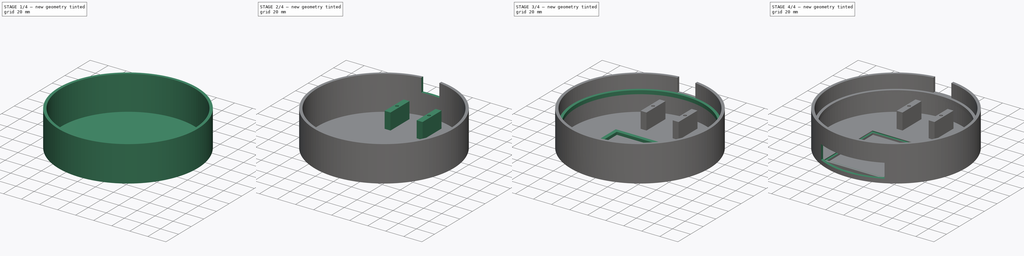
[diagram: build sequence overview — one tinted view per stage of 4, left to right]
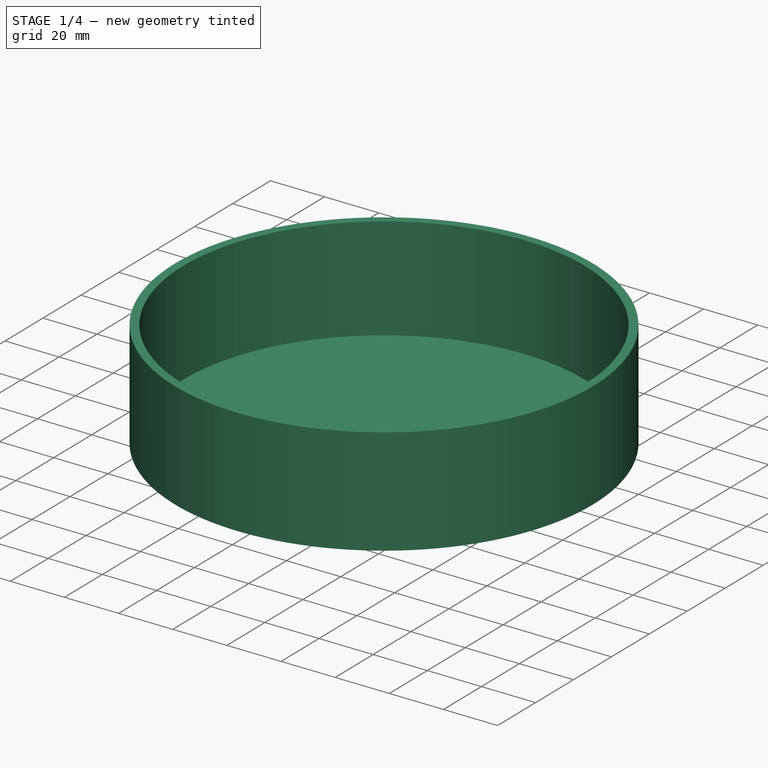
[diagram: stage 1 of 4 — iso view after this stage's code; geometry added in this stage tinted green]
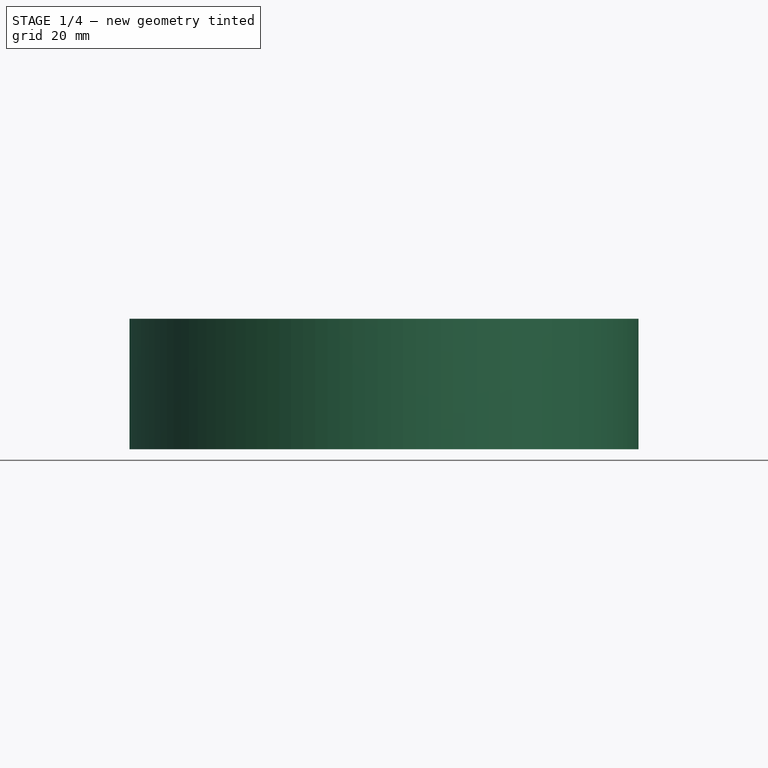
[diagram: stage 1 of 4 — front view after this stage's code; geometry added in this stage tinted green]
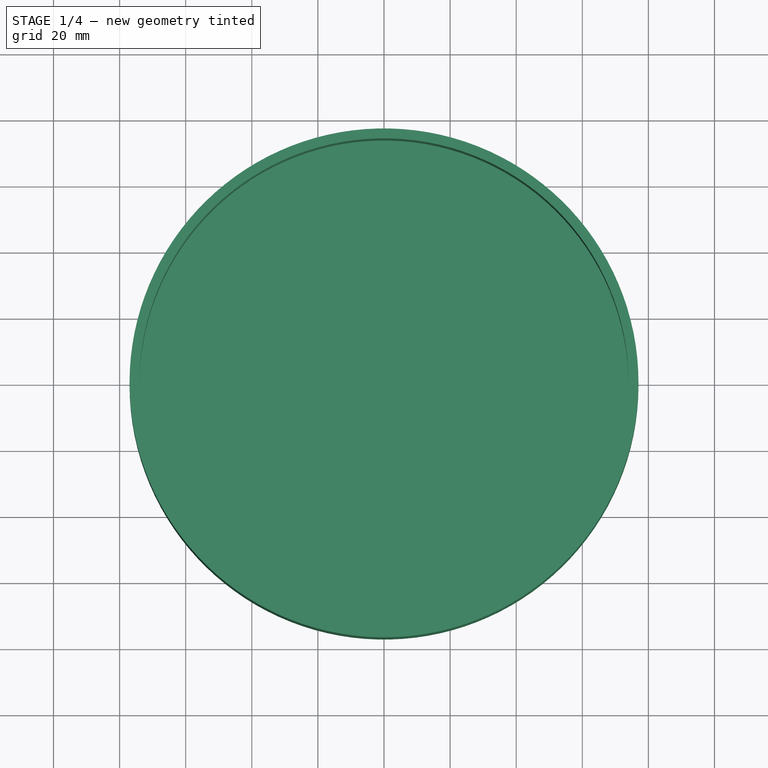
[diagram: stage 1 of 4 — top view after this stage's code; geometry added in this stage tinted green]
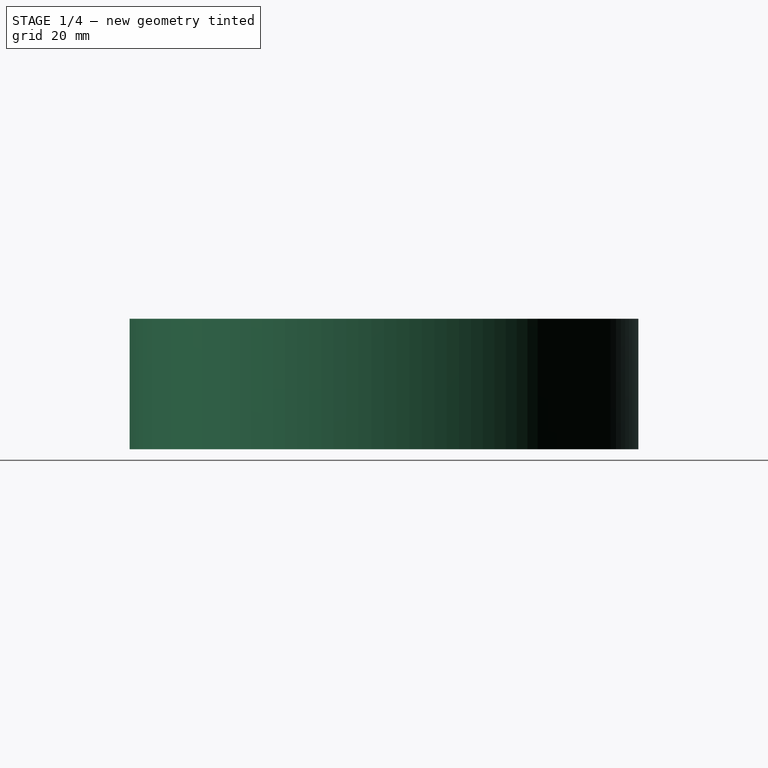
[diagram: stage 1 of 4 — right view after this stage's code; geometry added in this stage tinted green]
FCSTD DOCUMENT  (FreeCAD 0.20R)
Label: main_seb
License: All rights reserved
LicenseURL: http://en.wikipedia.org/wiki/All_rights_reserved
objects: Sketcher::SketchObject×10, PartDesign::Pad×5, PartDesign::Pocket×5, PartDesign::Body×1
note: 31 computed .brp shape members not serialized (recipe doc carries the construction recipe); baked Part::Feature solids carry a one-line shape summary decoded from their .brp

FEATURE [Sketcher::SketchObject] Sketch
  FullyConstrained = true
  sketch-geometry (2):
    g0: Circle CenterX=0 CenterY=0 CenterZ=0 NormalX=0 NormalY=0 NormalZ=1 AngleXU=0 Radius=77
    g1: Circle CenterX=0 CenterY=0 CenterZ=0 NormalX=0 NormalY=0 NormalZ=1 AngleXU=0 Radius=74
  constraints (4):
    c: Coincident(g0,g-1)
    c: Diameter(g0) = 154  'ext'
    c: Coincident(g1,g0)
    c: Diameter(g1) = 148
FEATURE [PartDesign::Pad] Pad  label="bord"
  Direction = (0,0,1)
  Length = 39.5
  Length2 = 10
  Profile = -> Sketch
  ReferenceAxis = -> Sketch [N_Axis]
  Type = 0
FEATURE [Sketcher::SketchObject] Sketch001
  FullyConstrained = true
  sketch-geometry (1):
    g0: Circle CenterX=0 CenterY=0 CenterZ=0 NormalX=0 NormalY=0 NormalZ=1 AngleXU=0 Radius=77
  constraints (2):
    c: Coincident(g0,g-1)
    c: Diameter(g0) = 154  'ext'
FEATURE [PartDesign::Pad] Pad001  label="fond"
  BaseFeature = -> Pad
  Direction = (0,0,1)
  Length = 1.5
  Length2 = 10
  Profile = -> Sketch001
  ReferenceAxis = -> Sketch001 [N_Axis]
  Type = 0
  UseCustomVector = true
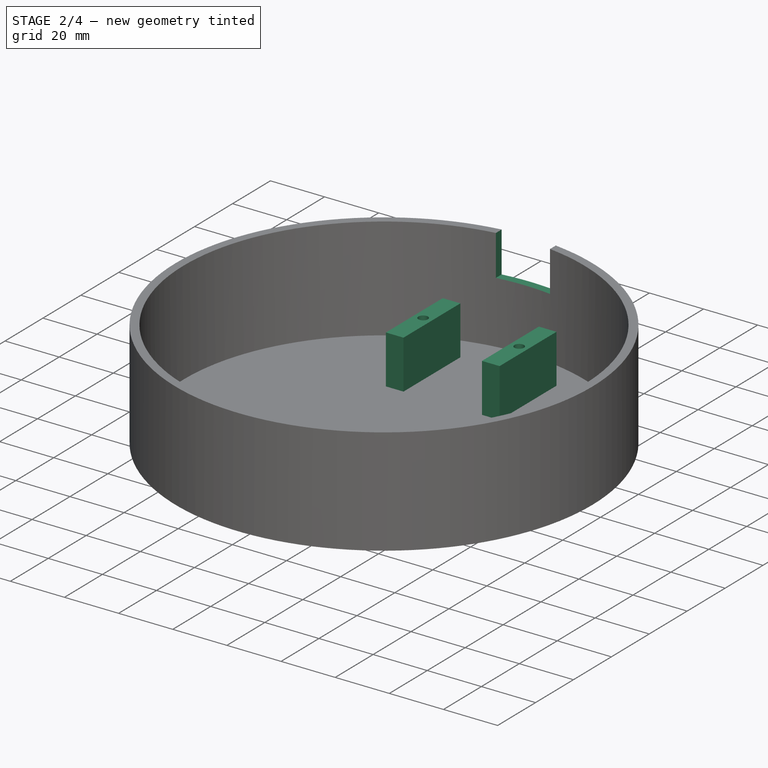
[diagram: stage 2 of 4 — iso view after this stage's code; geometry added in this stage tinted green]
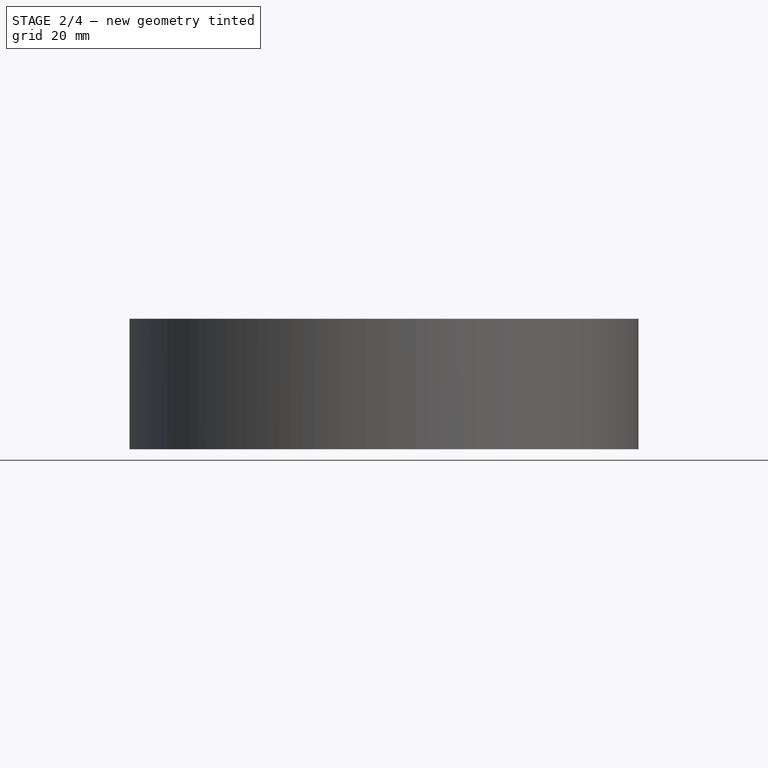
[diagram: stage 2 of 4 — front view after this stage's code; geometry added in this stage tinted green]
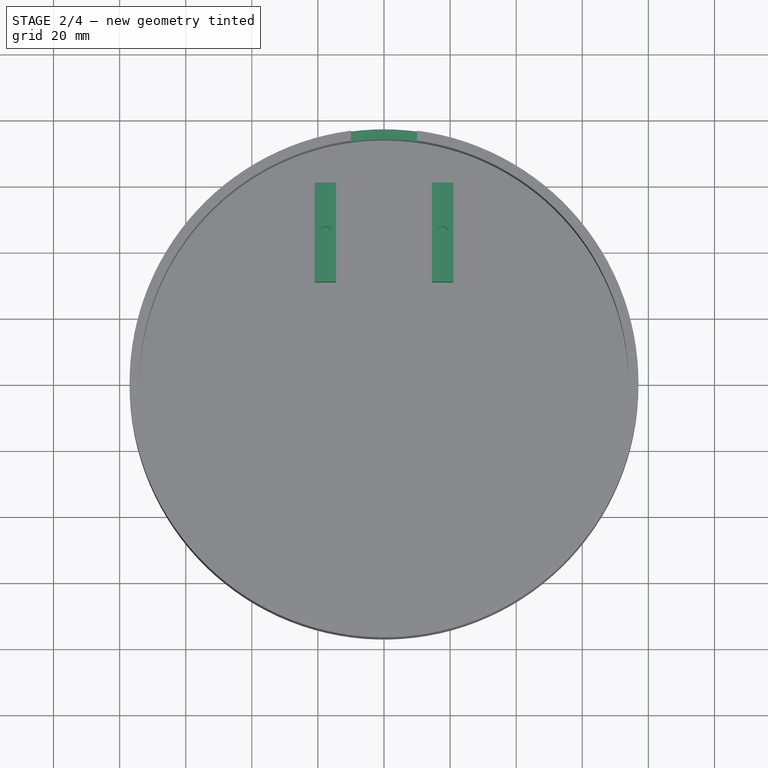
[diagram: stage 2 of 4 — top view after this stage's code; geometry added in this stage tinted green]
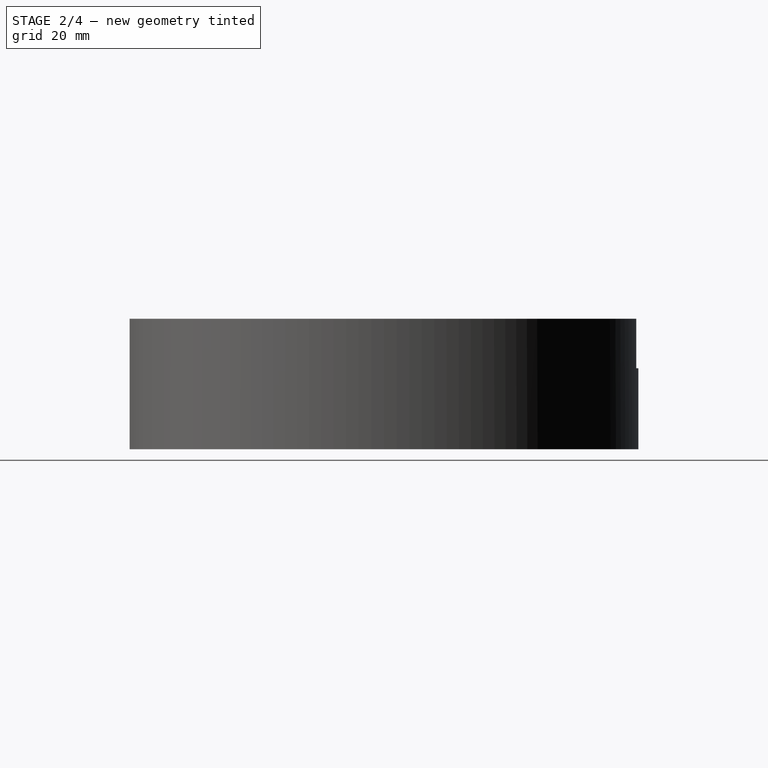
[diagram: stage 2 of 4 — right view after this stage's code; geometry added in this stage tinted green]
FEATURE [Sketcher::SketchObject] Sketch002
  FullyConstrained = true
  sketch-geometry (18):
    g0: Circle CenterX=0 CenterY=0 CenterZ=0 NormalX=0 NormalY=0 NormalZ=1 AngleXU=0 Radius=77
    g1: LineSegment StartX=-14.5 StartY=77 StartZ=0 EndX=0 EndY=77 EndZ=0
    g2: LineSegment StartX=0 StartY=77 StartZ=0 EndX=0 EndY=61 EndZ=0
    g3: LineSegment StartX=0 StartY=61 StartZ=0 EndX=-14.5 EndY=61 EndZ=0
    g4: LineSegment StartX=-14.5 StartY=61 StartZ=0 EndX=-14.5 EndY=77 EndZ=0
    g5: GeomPoint X=0 Y=77 Z=0
    g6: LineSegment StartX=-14.5 StartY=61 StartZ=0 EndX=-21 EndY=61 EndZ=0
    g7: LineSegment StartX=-21 StartY=61 StartZ=0 EndX=-21 EndY=31 EndZ=0
    g8: LineSegment StartX=-21 StartY=31 StartZ=0 EndX=-14.5 EndY=31 EndZ=0
    g9: LineSegment StartX=-14.5 StartY=31 StartZ=0 EndX=-14.5 EndY=61 EndZ=0
    g10: LineSegment StartX=0 StartY=77 StartZ=0 EndX=14.5 EndY=77 EndZ=0
    g11: LineSegment StartX=14.5 StartY=77 StartZ=0 EndX=14.5 EndY=61 EndZ=0
    g12: LineSegment StartX=14.5 StartY=61 StartZ=0 EndX=0 EndY=61 EndZ=0
    g13: LineSegment StartX=0 StartY=61 StartZ=0 EndX=0 EndY=77 EndZ=0
    g14: LineSegment StartX=14.5 StartY=61 StartZ=0 EndX=21 EndY=61 EndZ=0
    g15: LineSegment StartX=21 StartY=61 StartZ=0 EndX=21 EndY=31 EndZ=0
    g16: LineSegment StartX=21 StartY=31 StartZ=0 EndX=14.5 EndY=31 EndZ=0
    g17: LineSegment StartX=14.5 StartY=31 StartZ=0 EndX=14.5 EndY=61 EndZ=0
  constraints (48):
    c: Coincident(g0,g-1)
    c: Diameter(g0) = 154  'ext'
    c: Coincident(g1,g2)
    c: Coincident(g2,g3)
    c: Coincident(g3,g4)
    c: Coincident(g4,g1)
    c: Horizontal(g1)
    c: Horizontal(g3)
    c: Vertical(g2)
    c: Vertical(g4)
    c: PointOnObject(g5,g0)
    c: PointOnObject(g5,g-2)
    c: Coincident(g1,g5)
    c: DistanceY(g2,g2) = 16
    c: DistanceX(g3,g3) = 14.5
    c: Coincident(g6,g7)
    c: Coincident(g7,g8)
    c: Coincident(g8,g9)
    c: Coincident(g9,g6)
    c: Horizontal(g6)
    c: Horizontal(g8)
    c: Vertical(g7)
    c: Vertical(g9)
    c: Coincident(g6,g3)
    c: DistanceY(g7,g7) = 30
    c: DistanceX(g6,g6) = 6.5
    c: Coincident(g10,g11)
    c: Coincident(g11,g12)
    c: Coincident(g12,g13)
    c: Coincident(g13,g10)
    c: Horizontal(g10)
    c: Horizontal(g12)
    c: Vertical(g11)
    c: Vertical(g13)
    c: Coincident(g10,g1)
    c: DistanceX(g10,g10) = 14.5
    c: DistanceY(g11,g11) = 16
    c: Coincident(g14,g15)
    c: Coincident(g15,g16)
    c: Coincident(g16,g17)
    c: Coincident(g17,g14)
    c: Horizontal(g14)
    c: Horizontal(g16)
    c: Vertical(g15)
    c: Vertical(g17)
    c: Coincident(g11,g14)
    c: DistanceY(g15,g15) = 30
    c: DistanceX(g16,g16) = 6.5
FEATURE [PartDesign::Pad] Pad002
  BaseFeature = -> Pad001
  Direction = (0,0,1)
  Length = 19.5
  Length2 = 10
  Profile = -> Sketch002
  ReferenceAxis = -> Sketch002 [N_Axis]
  Type = 0
FEATURE [Sketcher::SketchObject] Sketch003
  FullyConstrained = true
  Placement = pos=(0,0,9.5) rot=(0,0,1;0rad)
  sketch-geometry (24):
    g0: Circle CenterX=0 CenterY=0 CenterZ=0 NormalX=0 NormalY=0 NormalZ=1 AngleXU=0 Radius=77
    g1: LineSegment StartX=-14.5 StartY=77 StartZ=0 EndX=0 EndY=77 EndZ=0
    g2: LineSegment StartX=0 StartY=77 StartZ=0 EndX=0 EndY=61 EndZ=0
    g3: LineSegment StartX=0 StartY=61 StartZ=0 EndX=-14.5 EndY=61 EndZ=0
    g4: LineSegment StartX=-14.5 StartY=61 StartZ=0 EndX=-14.5 EndY=77 EndZ=0
    g5: GeomPoint X=0 Y=77 Z=0
    g6: LineSegment StartX=-14.5 StartY=61 StartZ=0 EndX=-21 EndY=61 EndZ=0
    g7: LineSegment StartX=-21 StartY=61 StartZ=0 EndX=-21 EndY=31 EndZ=0
    g8: LineSegment StartX=-21 StartY=31 StartZ=0 EndX=-14.5 EndY=31 EndZ=0
    g9: LineSegment StartX=-14.5 StartY=31 StartZ=0 EndX=-14.5 EndY=61 EndZ=0
    g10: LineSegment StartX=0 StartY=77 StartZ=0 EndX=14.5 EndY=77 EndZ=0
    g11: LineSegment StartX=14.5 StartY=77 StartZ=0 EndX=14.5 EndY=61 EndZ=0
    g12: LineSegment StartX=14.5 StartY=61 StartZ=0 EndX=0 EndY=61 EndZ=0
    g13: LineSegment StartX=0 StartY=61 StartZ=0 EndX=0 EndY=77 EndZ=0
    g14: LineSegment StartX=14.5 StartY=61 StartZ=0 EndX=21 EndY=61 EndZ=0
    g15: LineSegment StartX=21 StartY=61 StartZ=0 EndX=21 EndY=31 EndZ=0
    g16: LineSegment StartX=21 StartY=31 StartZ=0 EndX=14.5 EndY=31 EndZ=0
    g17: LineSegment StartX=14.5 StartY=31 StartZ=0 EndX=14.5 EndY=61 EndZ=0
    g18: LineSegment StartX=-21 StartY=61 StartZ=0 EndX=-14.5 EndY=31 EndZ=0
    g19: LineSegment StartX=-14.5 StartY=61 StartZ=0 EndX=-21 EndY=31 EndZ=0
    g20: LineSegment StartX=14.5 StartY=61 StartZ=0 EndX=21 EndY=31 EndZ=0
    g21: LineSegment StartX=21 StartY=61 StartZ=0 EndX=14.5 EndY=31 EndZ=0
    g22: Circle CenterX=-17.75 CenterY=46 CenterZ=0 NormalX=0 NormalY=0 NormalZ=1 AngleXU=0 Radius=1.75
    g23: Circle CenterX=17.75 CenterY=46 CenterZ=0 NormalX=0 NormalY=0 NormalZ=1 AngleXU=0 Radius=1.75
  constraints (70):
    c: Coincident(g0,g-1)
    c: Diameter(g0) = 154  'ext'
    c: Coincident(g1,g2)
    c: Coincident(g2,g3)
    c: Coincident(g3,g4)
    c: Coincident(g4,g1)
    c: Horizontal(g1)
    c: Horizontal(g3)
    c: Vertical(g2)
    c: Vertical(g4)
    c: PointOnObject(g5,g0)
    c: PointOnObject(g5,g-2)
    c: Coincident(g1,g5)
    c: DistanceY(g2,g2) = 16
    c: DistanceX(g3,g3) = 14.5
    c: Coincident(g6,g7)
    c: Coincident(g7,g8)
    c: Coincident(g8,g9)
    c: Coincident(g9,g6)
    c: Horizontal(g6)
    c: Horizontal(g8)
    c: Vertical(g7)
    c: Vertical(g9)
    c: Coincident(g6,g3)
    c: DistanceY(g7,g7) = 30
    c: DistanceX(g6,g6) = 6.5
    c: Coincident(g10,g11)
    c: Coincident(g11,g12)
    c: Coincident(g12,g13)
    c: Coincident(g13,g10)
    c: Horizontal(g10)
    c: Horizontal(g12)
    c: Vertical(g11)
    c: Vertical(g13)
    c: Coincident(g10,g1)
    c: DistanceX(g10,g10) = 14.5
    c: DistanceY(g11,g11) = 16
    c: Coincident(g14,g15)
    c: Coincident(g15,g16)
    c: Coincident(g16,g17)
    c: Coincident(g17,g14)
    c: Horizontal(g14)
    c: Horizontal(g16)
    c: Vertical(g15)
    c: Vertical(g17)
    c: Coincident(g11,g14)
    c: DistanceY(g15,g15) = 30
    c: DistanceX(g16,g16) = 6.5
    c: PointOnObject(g18,g6)
    c: PointOnObject(g18,g7)
    c: PointOnObject(g19,g6)
    c: PointOnObject(g19,g9)
    c: PointOnObject(g20,g17)
    c: PointOnObject(g20,g14)
    c: PointOnObject(g21,g14)
    c: PointOnObject(g21,g15)
    c: PointOnObject(g21,g17)
    c: PointOnObject(g21,g16)
    c: PointOnObject(g20,g16)
    c: PointOnObject(g20,g15)
    c: PointOnObject(g19,g7)
    c: PointOnObject(g19,g8)
    c: PointOnObject(g18,g8)
    c: PointOnObject(g18,g9)
    c: PointOnObject(g22,g19)
    c: PointOnObject(g22,g18)
    c: Diameter(g22) = 3.5
    c: PointOnObject(g23,g21)
    c: PointOnObject(g23,g20)
    c: Diameter(g23) = 3.5
FEATURE [PartDesign::Pocket] Pocket
  BaseFeature = -> Pad002
  Direction = (0,0,-1)
  Length = 10
  Length2 = 5
  Profile = -> Sketch003
  ReferenceAxis = -> Sketch003 [N_Axis]
  Reversed = true
  Type = 0
FEATURE [Sketcher::SketchObject] Sketch004
  FullyConstrained = false
  Placement = pos=(0,0,24.5) rot=(0,0,1;0rad)
  sketch-geometry (8):
    g0: Circle CenterX=0 CenterY=0 CenterZ=0 NormalX=0 NormalY=0 NormalZ=1 AngleXU=0 Radius=77
    g1: GeomPoint X=0 Y=77 Z=0
    g2: LineSegment StartX=-10 StartY=85.8465 StartZ=0 EndX=10 EndY=85.8465 EndZ=0
    g3: LineSegment StartX=10 StartY=85.8465 StartZ=0 EndX=10 EndY=68.1535 EndZ=0
    g4: LineSegment StartX=10 StartY=68.1535 StartZ=0 EndX=-10 EndY=68.1535 EndZ=0
    g5: LineSegment StartX=-10 StartY=68.1535 StartZ=0 EndX=-10 EndY=85.8465 EndZ=0
    g6: LineSegment StartX=-10 StartY=85.8465 StartZ=0 EndX=10 EndY=68.1535 EndZ=0
    g7: LineSegment StartX=10 StartY=85.8465 StartZ=0 EndX=-10 EndY=68.1535 EndZ=0
  constraints (23):
    c: Coincident(g0,g-1)
    c: Diameter(g0) = 154  'ext'
    c: PointOnObject(g1,g0)
    c: PointOnObject(g1,g-2)
    c: Coincident(g2,g3)
    c: Coincident(g3,g4)
    c: Coincident(g4,g5)
    c: Coincident(g5,g2)
    c: Horizontal(g2)
    c: Horizontal(g4)
    c: Vertical(g3)
    c: Vertical(g5)
    c: DistanceX(g2,g2) = 20
    c: PointOnObject(g6,g2)
    c: PointOnObject(g6,g5)
    c: PointOnObject(g6,g4)
    c: PointOnObject(g6,g3)
    c: PointOnObject(g7,g4)
    c: PointOnObject(g7,g5)
    c: PointOnObject(g7,g2)
    c: PointOnObject(g7,g3)
    c: PointOnObject(g1,g6)
    c: PointOnObject(g1,g7)
FEATURE [PartDesign::Pocket] Pocket001
  BaseFeature = -> Pocket
  Direction = (0,0,-1)
  Length = 15
  Length2 = 5
  Profile = -> Sketch004
  ReferenceAxis = -> Sketch004 [N_Axis]
  Reversed = true
  Type = 0
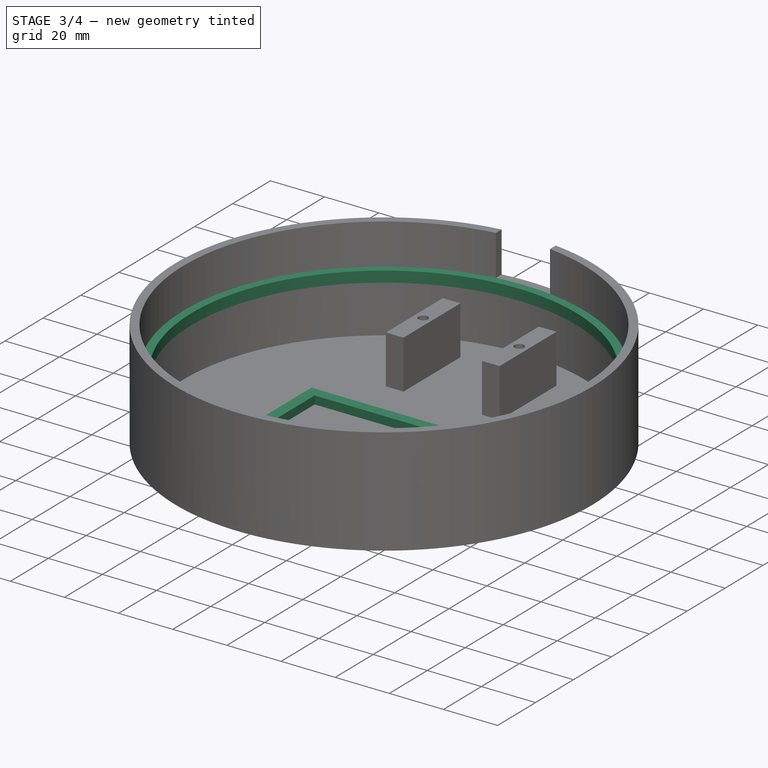
[diagram: stage 3 of 4 — iso view after this stage's code; geometry added in this stage tinted green]
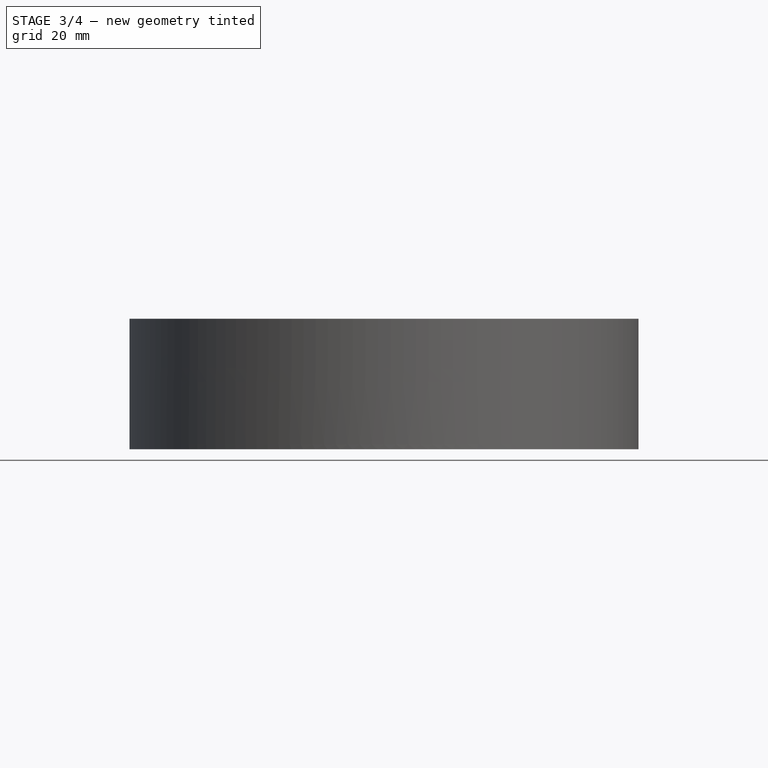
[diagram: stage 3 of 4 — front view after this stage's code; geometry added in this stage tinted green]
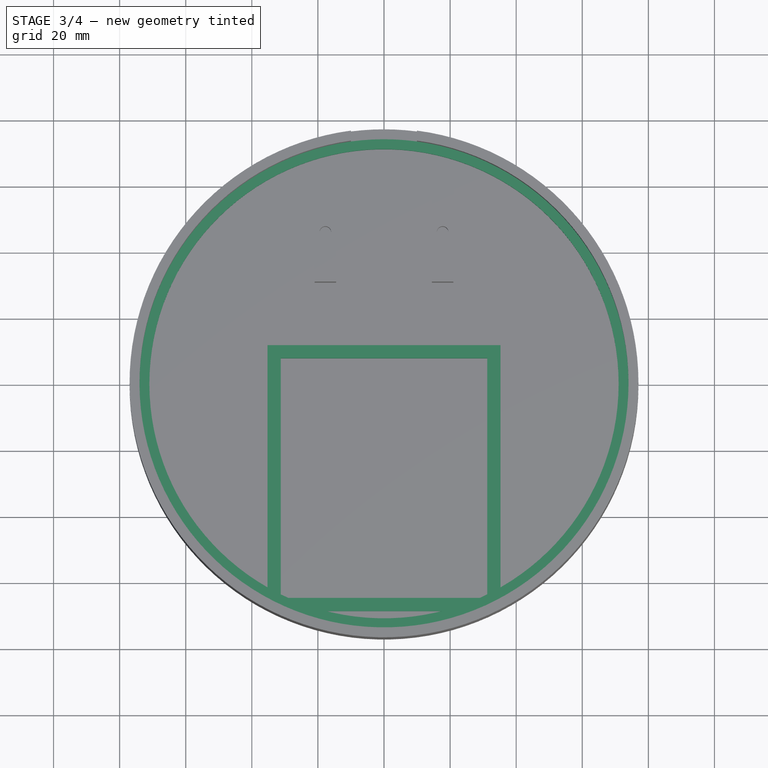
[diagram: stage 3 of 4 — top view after this stage's code; geometry added in this stage tinted green]
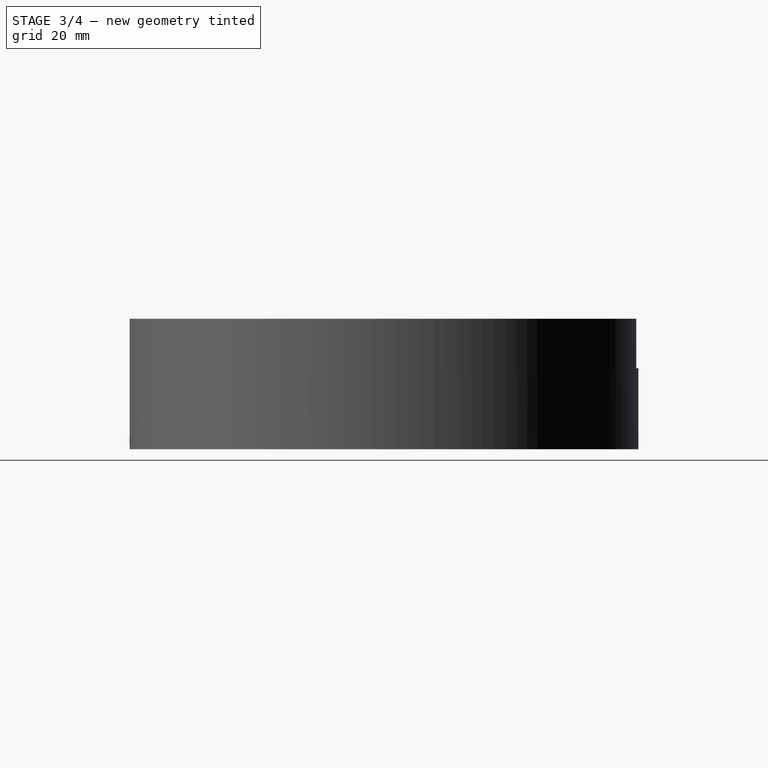
[diagram: stage 3 of 4 — right view after this stage's code; geometry added in this stage tinted green]
FEATURE [Sketcher::SketchObject] Sketch005
  FullyConstrained = true
  Placement = pos=(0,0,20.5) rot=(0,0,1;0rad)
  sketch-geometry (2):
    g0: Circle CenterX=0 CenterY=0 CenterZ=0 NormalX=0 NormalY=0 NormalZ=1 AngleXU=0 Radius=77
    g1: Circle CenterX=0 CenterY=0 CenterZ=0 NormalX=0 NormalY=0 NormalZ=1 AngleXU=0 Radius=71
  constraints (4):
    c: Coincident(g0,g-1)
    c: Diameter(g0) = 154  'ext'
    c: Coincident(g1,g0)
    c: Diameter(g1) = 142
FEATURE [PartDesign::Pad] Pad003
  BaseFeature = -> Pocket001
  Direction = (0,0,1)
  Length = 4
  Length2 = 10
  Profile = -> Sketch005
  ReferenceAxis = -> Sketch005 [N_Axis]
  Type = 0
FEATURE [Sketcher::SketchObject] Sketch007
  FullyConstrained = true
  Placement = pos=(0,0,1.5) rot=(0,0,1;0rad)
  sketch-geometry (10):
    g0: Circle CenterX=0 CenterY=0 CenterZ=0 NormalX=0 NormalY=0 NormalZ=1 AngleXU=0 Radius=77
    g1: Circle CenterX=0 CenterY=0 CenterZ=0 NormalX=0 NormalY=0 NormalZ=1 AngleXU=0 Radius=74
    g2: LineSegment StartX=-33.25 StartY=10.0424 StartZ=0 EndX=33.25 EndY=10.0424 EndZ=0
    g3: LineSegment StartX=33.25 StartY=10.0424 StartZ=0 EndX=33.25 EndY=-66.4576 EndZ=0
    g4: LineSegment StartX=33.25 StartY=-66.4576 StartZ=0 EndX=-33.25 EndY=-66.4576 EndZ=0
    g5: LineSegment StartX=-33.25 StartY=-66.4576 StartZ=0 EndX=-33.25 EndY=10.0424 EndZ=0
    g6: LineSegment StartX=-35.25 StartY=12.0424 StartZ=0 EndX=35.25 EndY=12.0424 EndZ=0
    g7: LineSegment StartX=35.25 StartY=12.0424 StartZ=0 EndX=35.25 EndY=-68.4576 EndZ=0
    g8: LineSegment StartX=35.25 StartY=-68.4576 StartZ=0 EndX=-35.25 EndY=-68.4576 EndZ=0
    g9: LineSegment StartX=-35.25 StartY=-68.4576 StartZ=0 EndX=-35.25 EndY=12.0424 EndZ=0
  constraints (28):
    c: Coincident(g0,g-1)
    c: Diameter(g0) = 154  'ext'
    c: Coincident(g1,g0)
    c: Diameter(g1) = 148
    c: Coincident(g2,g3)
    c: Coincident(g3,g4)
    c: Coincident(g4,g5)
    c: Coincident(g5,g2)
    c: Horizontal(g2)
    c: Horizontal(g4)
    c: Vertical(g3)
    c: Vertical(g5)
    c: DistanceX(g2,g2) = 66.5
    c: DistanceY(g3,g3) = 76.5
    c: Coincident(g6,g7)
    c: Coincident(g7,g8)
    c: Coincident(g8,g9)
    c: Coincident(g9,g6)
    c: Horizontal(g6)
    c: Horizontal(g8)
    c: Vertical(g7)
    c: Vertical(g9)
    c: Distance(g6,g2) = 2
    c: Distance(g6,g5) = 2
    c: Distance(g7,g4) = 2
    c: Distance(g3,g7) = 2
    c: PointOnObject(g8,g0)
    c: PointOnObject(g7,g0)
FEATURE [PartDesign::Pad] Pad004
  BaseFeature = -> Pad003
  Direction = (0,0,1)
  Length = 3
  Length2 = 10
  Profile = -> Sketch007
  ReferenceAxis = -> Sketch007 [N_Axis]
  Type = 0
FEATURE [Sketcher::SketchObject] Sketch008
  FullyConstrained = true
  Placement = pos=(0,0,1.5) rot=(0,0,1;0rad)
  sketch-geometry (14):
    g0: Circle CenterX=0 CenterY=0 CenterZ=0 NormalX=0 NormalY=0 NormalZ=1 AngleXU=0 Radius=77
    g1: Circle CenterX=0 CenterY=0 CenterZ=0 NormalX=0 NormalY=0 NormalZ=1 AngleXU=0 Radius=74
    g2: LineSegment StartX=-33.25 StartY=10.0424 StartZ=0 EndX=33.25 EndY=10.0424 EndZ=0
    g3: LineSegment StartX=33.25 StartY=10.0424 StartZ=0 EndX=33.25 EndY=-66.4576 EndZ=0
    g4: LineSegment StartX=33.25 StartY=-66.4576 StartZ=0 EndX=-33.25 EndY=-66.4576 EndZ=0
    g5: LineSegment StartX=-33.25 StartY=-66.4576 StartZ=0 EndX=-33.25 EndY=10.0424 EndZ=0
    g6: LineSegment StartX=-35.25 StartY=12.0424 StartZ=0 EndX=35.25 EndY=12.0424 EndZ=0
    g7: LineSegment StartX=35.25 StartY=12.0424 StartZ=0 EndX=35.25 EndY=-68.4576 EndZ=0
    g8: LineSegment StartX=35.25 StartY=-68.4576 StartZ=0 EndX=-35.25 EndY=-68.4576 EndZ=0
    g9: LineSegment StartX=-35.25 StartY=-68.4576 StartZ=0 EndX=-35.25 EndY=12.0424 EndZ=0
    g10: LineSegment StartX=-31.25 StartY=8.04244 StartZ=0 EndX=31.25 EndY=8.04244 EndZ=0
    g11: LineSegment StartX=31.25 StartY=8.04244 StartZ=0 EndX=31.25 EndY=-64.4576 EndZ=0
    g12: LineSegment StartX=31.25 StartY=-64.4576 StartZ=0 EndX=-31.25 EndY=-64.4576 EndZ=0
    g13: LineSegment StartX=-31.25 StartY=-64.4576 StartZ=0 EndX=-31.25 EndY=8.04244 EndZ=0
  constraints (40):
    c: Coincident(g0,g-1)
    c: Diameter(g0) = 154  'ext'
    c: Coincident(g1,g0)
    c: Diameter(g1) = 148
    c: Coincident(g2,g3)
    c: Coincident(g3,g4)
    c: Coincident(g4,g5)
    c: Coincident(g5,g2)
    c: Horizontal(g2)
    c: Horizontal(g4)
    c: Vertical(g3)
    c: Vertical(g5)
    c: DistanceX(g2,g2) = 66.5
    c: DistanceY(g3,g3) = 76.5
    c: Coincident(g6,g7)
    c: Coincident(g7,g8)
    c: Coincident(g8,g9)
    c: Coincident(g9,g6)
    c: Horizontal(g6)
    c: Horizontal(g8)
    c: Vertical(g7)
    c: Vertical(g9)
    c: Distance(g6,g2) = 2
    c: Distance(g6,g5) = 2
    c: Distance(g7,g4) = 2
    c: Distance(g3,g7) = 2
    c: Coincident(g10,g11)
    c: Coincident(g11,g12)
    c: Coincident(g12,g13)
    c: Coincident(g13,g10)
    c: Horizontal(g10)
    c: Horizontal(g12)
    c: Vertical(g11)
    c: Vertical(g13)
    c: Distance(g10,g5) = 2
    c: Distance(g10,g2) = 2
    c: Distance(g11,g3) = 2
    c: Distance(g12,g4) = 2
    c: PointOnObject(g8,g0)
    c: PointOnObject(g7,g0)
FEATURE [PartDesign::Pocket] Pocket002
  BaseFeature = -> Pad004
  Direction = (0,0,-1)
  Length = 4
  Length2 = 5
  Profile = -> Sketch008
  ReferenceAxis = -> Sketch008 [N_Axis]
  Reversed = true
  Type = 0
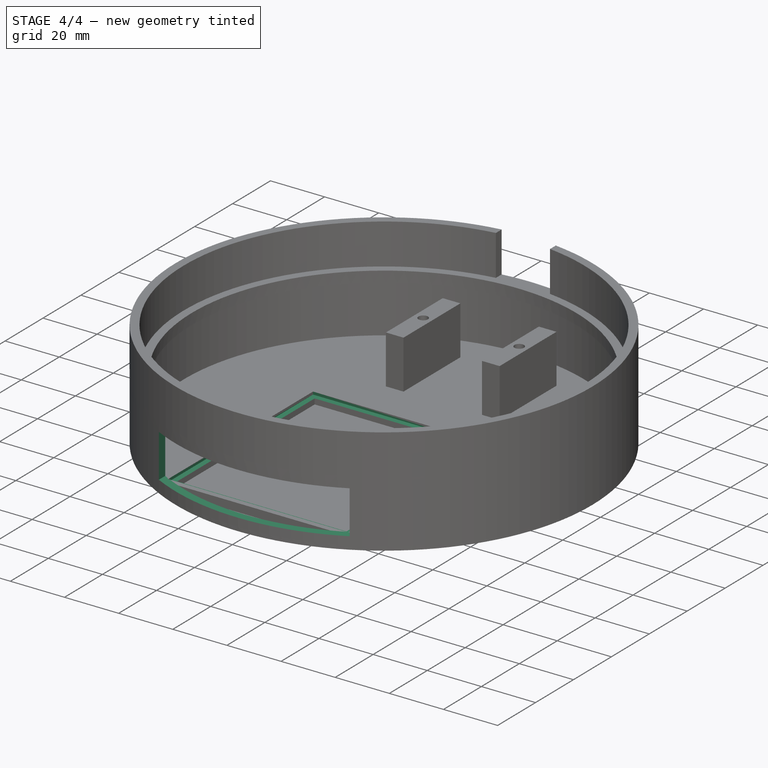
[diagram: stage 4 of 4 — iso view after this stage's code; geometry added in this stage tinted green]
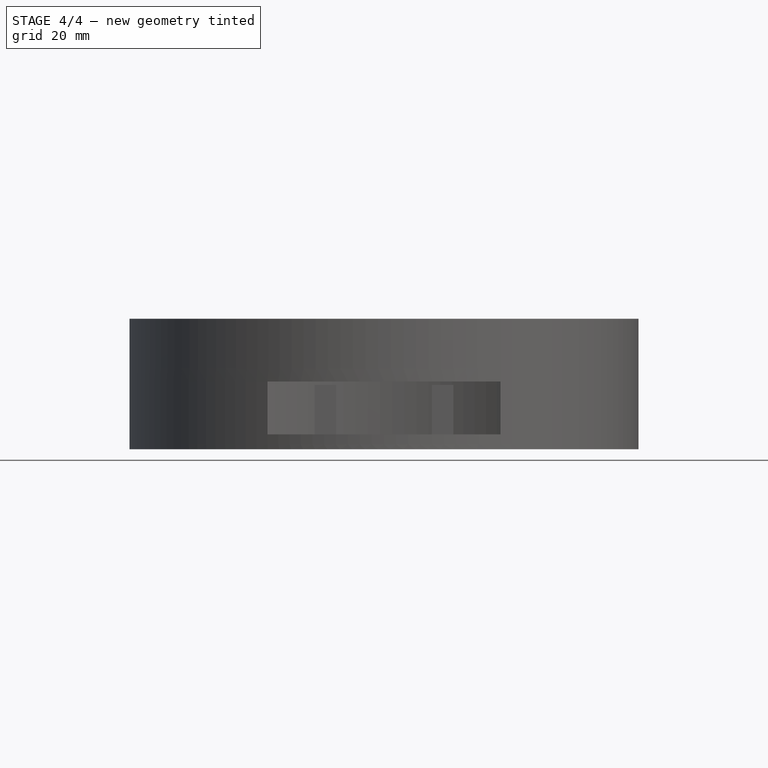
[diagram: stage 4 of 4 — front view after this stage's code; geometry added in this stage tinted green]
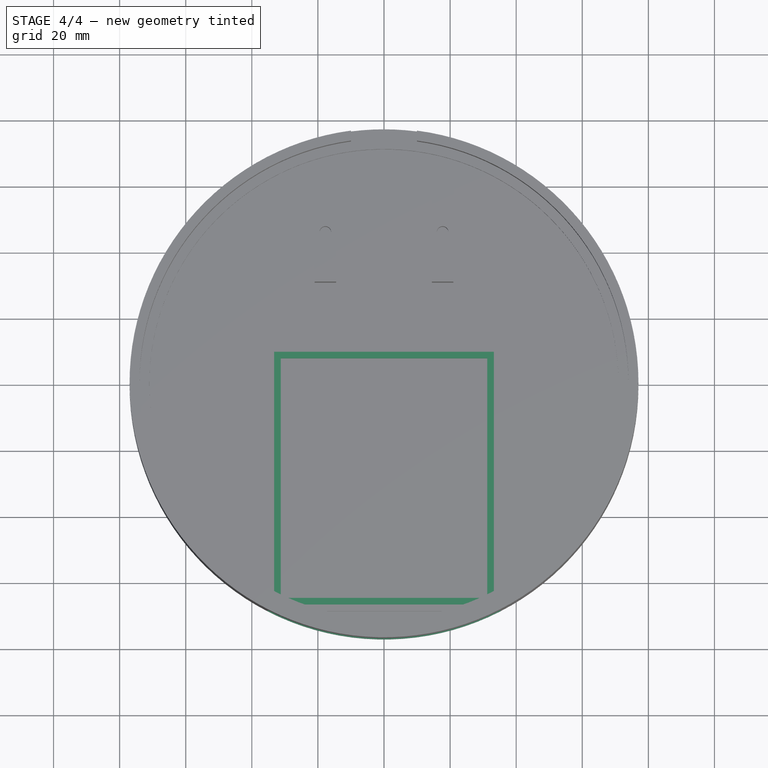
[diagram: stage 4 of 4 — top view after this stage's code; geometry added in this stage tinted green]
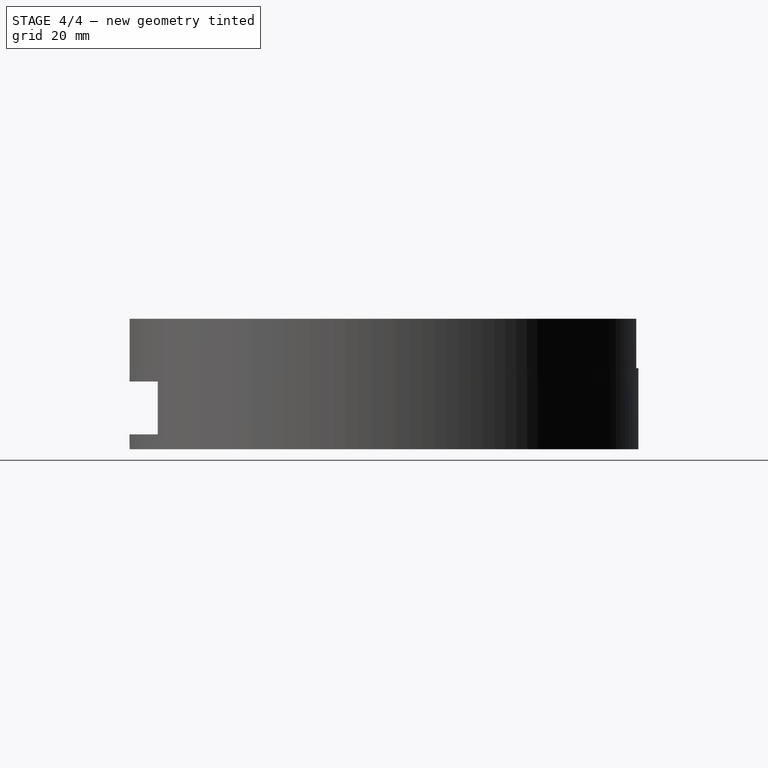
[diagram: stage 4 of 4 — right view after this stage's code; geometry added in this stage tinted green]
FEATURE [Sketcher::SketchObject] Sketch009
  FullyConstrained = true
  Placement = pos=(0,0,3.5) rot=(0,0,1;0rad)
  sketch-geometry (14):
    g0: Circle CenterX=0 CenterY=0 CenterZ=0 NormalX=0 NormalY=0 NormalZ=1 AngleXU=0 Radius=77
    g1: Circle CenterX=0 CenterY=0 CenterZ=0 NormalX=0 NormalY=0 NormalZ=1 AngleXU=0 Radius=74
    g2: LineSegment StartX=-33.25 StartY=10.0424 StartZ=0 EndX=33.25 EndY=10.0424 EndZ=0
    g3: LineSegment StartX=33.25 StartY=10.0424 StartZ=0 EndX=33.25 EndY=-66.4576 EndZ=0
    g4: LineSegment StartX=33.25 StartY=-66.4576 StartZ=0 EndX=-33.25 EndY=-66.4576 EndZ=0
    g5: LineSegment StartX=-33.25 StartY=-66.4576 StartZ=0 EndX=-33.25 EndY=10.0424 EndZ=0
    g6: LineSegment StartX=-35.25 StartY=12.0424 StartZ=0 EndX=35.25 EndY=12.0424 EndZ=0
    g7: LineSegment StartX=35.25 StartY=12.0424 StartZ=0 EndX=35.25 EndY=-68.4576 EndZ=0
    g8: LineSegment StartX=35.25 StartY=-68.4576 StartZ=0 EndX=-35.25 EndY=-68.4576 EndZ=0
    g9: LineSegment StartX=-35.25 StartY=-68.4576 StartZ=0 EndX=-35.25 EndY=12.0424 EndZ=0
    g10: LineSegment StartX=-31.25 StartY=8.04244 StartZ=0 EndX=31.25 EndY=8.04244 EndZ=0
    g11: LineSegment StartX=31.25 StartY=8.04244 StartZ=0 EndX=31.25 EndY=-64.4576 EndZ=0
    g12: LineSegment StartX=31.25 StartY=-64.4576 StartZ=0 EndX=-31.25 EndY=-64.4576 EndZ=0
    g13: LineSegment StartX=-31.25 StartY=-64.4576 StartZ=0 EndX=-31.25 EndY=8.04244 EndZ=0
  constraints (40):
    c: Coincident(g0,g-1)
    c: Diameter(g0) = 154  'ext'
    c: Coincident(g1,g0)
    c: Diameter(g1) = 148
    c: Coincident(g2,g3)
    c: Coincident(g3,g4)
    c: Coincident(g4,g5)
    c: Coincident(g5,g2)
    c: Horizontal(g2)
    c: Horizontal(g4)
    c: Vertical(g3)
    c: Vertical(g5)
    c: DistanceX(g2,g2) = 66.5
    c: DistanceY(g3,g3) = 76.5
    c: Coincident(g6,g7)
    c: Coincident(g7,g8)
    c: Coincident(g8,g9)
    c: Coincident(g9,g6)
    c: Horizontal(g6)
    c: Horizontal(g8)
    c: Vertical(g7)
    c: Vertical(g9)
    c: Distance(g6,g2) = 2
    c: Distance(g6,g5) = 2
    c: Distance(g7,g4) = 2
    c: Distance(g3,g7) = 2
    c: Coincident(g10,g11)
    c: Coincident(g11,g12)
    c: Coincident(g12,g13)
    c: Coincident(g13,g10)
    c: Horizontal(g10)
    c: Horizontal(g12)
    c: Vertical(g11)
    c: Vertical(g13)
    c: Distance(g10,g5) = 2
    c: Distance(g10,g2) = 2
    c: Distance(g11,g3) = 2
    c: Distance(g12,g4) = 2
    c: PointOnObject(g8,g0)
    c: PointOnObject(g7,g0)
FEATURE [PartDesign::Pocket] Pocket003
  BaseFeature = -> Pocket002
  Direction = (0,0,-1)
  Length = 2
  Length2 = 5
  Profile = -> Sketch009
  ReferenceAxis = -> Sketch009 [N_Axis]
  Reversed = true
  Type = 0
FEATURE [Sketcher::SketchObject] Sketch010
  FullyConstrained = false
  Placement = pos=(0,0,4.5) rot=(0,0,1;0rad)
  sketch-geometry (18):
    g0: Circle CenterX=0 CenterY=0 CenterZ=0 NormalX=0 NormalY=0 NormalZ=1 AngleXU=0 Radius=77
    g1: Circle CenterX=0 CenterY=0 CenterZ=0 NormalX=0 NormalY=0 NormalZ=1 AngleXU=0 Radius=74
    g2: LineSegment StartX=-33.25 StartY=13.4351 StartZ=0 EndX=33.25 EndY=13.4351 EndZ=0
    g3: LineSegment StartX=33.25 StartY=13.4351 StartZ=0 EndX=33.25 EndY=-63.0649 EndZ=0
    g4: LineSegment StartX=33.25 StartY=-63.0649 StartZ=0 EndX=-33.25 EndY=-63.0649 EndZ=0
    g5: LineSegment StartX=-33.25 StartY=-63.0649 StartZ=0 EndX=-33.25 EndY=13.4351 EndZ=0
    g6: LineSegment StartX=-35.25 StartY=15.4351 StartZ=0 EndX=35.25 EndY=15.4351 EndZ=0
    g7: LineSegment StartX=35.25 StartY=15.4351 StartZ=0 EndX=35.25 EndY=-65.0649 EndZ=0
    g8: LineSegment StartX=35.25 StartY=-65.0649 StartZ=0 EndX=-35.25 EndY=-65.0649 EndZ=0
    g9: LineSegment StartX=-35.25 StartY=-65.0649 StartZ=0 EndX=-35.25 EndY=15.4351 EndZ=0
    g10: LineSegment StartX=-31.25 StartY=11.4351 StartZ=0 EndX=31.25 EndY=11.4351 EndZ=0
    g11: LineSegment StartX=31.25 StartY=11.4351 StartZ=0 EndX=31.25 EndY=-61.0649 EndZ=0
    g12: LineSegment StartX=31.25 StartY=-61.0649 StartZ=0 EndX=-31.25 EndY=-61.0649 EndZ=0
    g13: LineSegment StartX=-31.25 StartY=-61.0649 StartZ=0 EndX=-31.25 EndY=11.4351 EndZ=0
    g14: LineSegment StartX=-35.25 StartY=-65.0649 StartZ=0 EndX=35.25 EndY=-65.0649 EndZ=0
    g15: LineSegment StartX=35.25 StartY=-65.0649 StartZ=0 EndX=35.25 EndY=-102.562 EndZ=0
    g16: LineSegment StartX=35.25 StartY=-102.562 StartZ=0 EndX=-35.25 EndY=-102.562 EndZ=0
    g17: LineSegment StartX=-35.25 StartY=-102.562 StartZ=0 EndX=-35.25 EndY=-65.0649 EndZ=0
  constraints (50):
    c: Coincident(g0,g-1)
    c: Diameter(g0) = 154  'ext'
    c: Coincident(g1,g0)
    c: Diameter(g1) = 148
    c: Coincident(g2,g3)
    c: Coincident(g3,g4)
    c: Coincident(g4,g5)
    c: Coincident(g5,g2)
    c: Horizontal(g2)
    c: Horizontal(g4)
    c: Vertical(g3)
    c: Vertical(g5)
    c: DistanceX(g2,g2) = 66.5
    c: DistanceY(g3,g3) = 76.5
    c: Coincident(g6,g7)
    c: Coincident(g7,g8)
    c: Coincident(g8,g9)
    c: Coincident(g9,g6)
    c: Horizontal(g6)
    c: Horizontal(g8)
    c: Vertical(g7)
    c: Vertical(g9)
    c: Distance(g6,g2) = 2
    c: Distance(g6,g5) = 2
    c: Distance(g7,g4) = 2
    c: Distance(g3,g7) = 2
    c: PointOnObject(g8,g1)
    c: PointOnObject(g7,g1)
    c: Coincident(g10,g11)
    c: Coincident(g11,g12)
    c: Coincident(g12,g13)
    c: Coincident(g13,g10)
    c: Horizontal(g10)
    c: Horizontal(g12)
    c: Vertical(g11)
    c: Vertical(g13)
    c: Distance(g10,g5) = 2
    c: Distance(g10,g2) = 2
    c: Distance(g11,g3) = 2
    c: Distance(g12,g4) = 2
    c: Coincident(g14,g15)
    c: Coincident(g15,g16)
    c: Coincident(g16,g17)
    c: Coincident(g17,g14)
    c: Horizontal(g14)
    c: Horizontal(g16)
    c: Vertical(g15)
    c: Vertical(g17)
    c: Coincident(g14,g7)
    c: PointOnObject(g14,g9)
FEATURE [PartDesign::Pocket] Pocket004
  BaseFeature = -> Pocket003
  Direction = (0,0,-1)
  Length = 16
  Length2 = 5
  Profile = -> Sketch010
  ReferenceAxis = -> Sketch010 [N_Axis]
  Reversed = true
  Type = 0
FEATURE [PartDesign::Body] Body
  Group = -> [Sketch,Pad,Sketch001,Pad001,Sketch002,Pad002,Sketch003,Pocket,Sketch004,Pocket001,Sketch005,Pad003,Sketch007,Pad004,Sketch008,Pocket002,Sketch009,Pocket003,Sketch010,Pocket004]
  Origin = -> Origin
  Tip = -> Pocket004
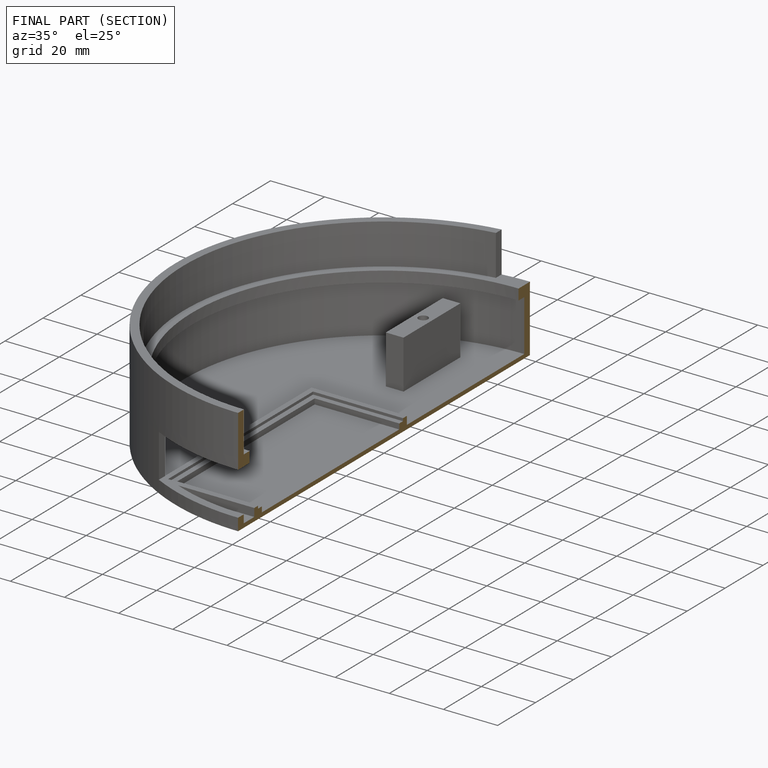
[diagram: finished part — half-section view (interior)]
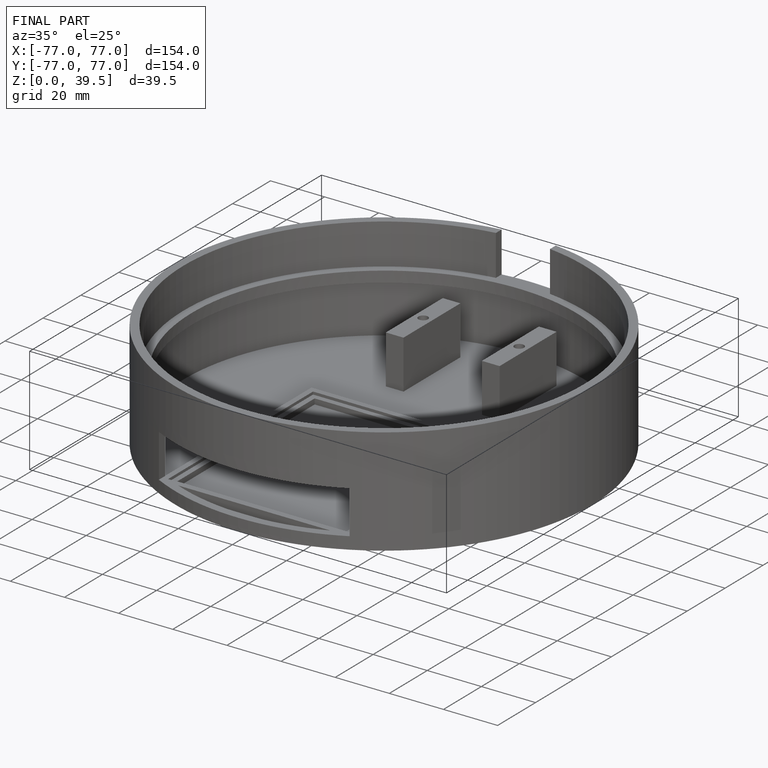
[diagram: finished part — iso view with bounding-box wireframe]
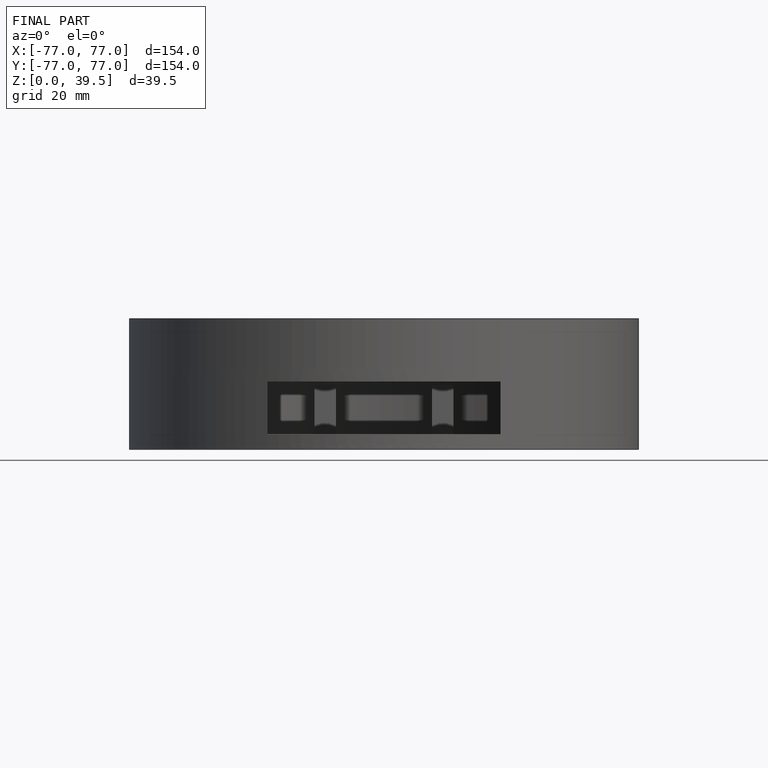
[diagram: finished part — front view with bounding-box wireframe]
